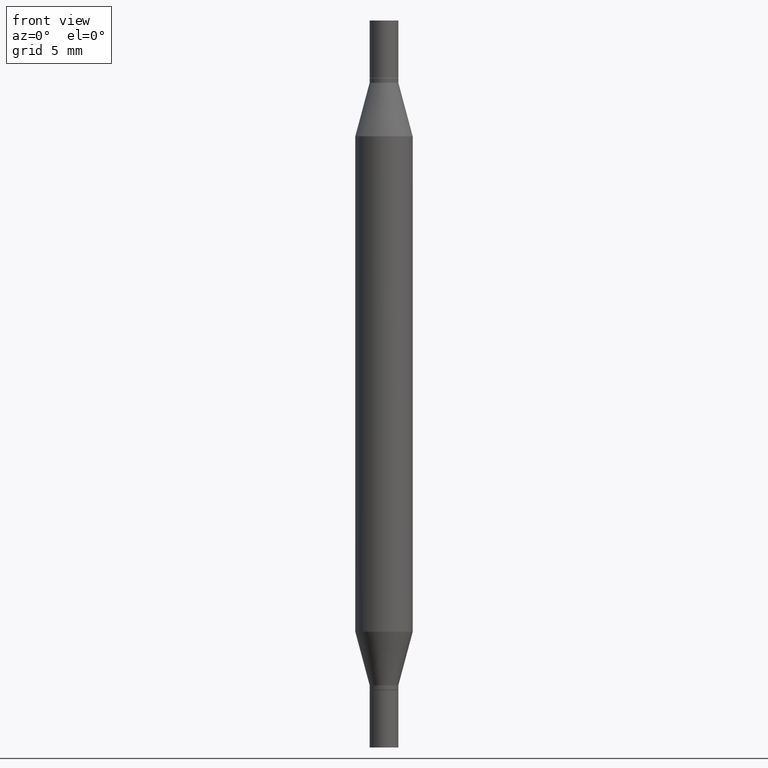
[diagram: clean part render]
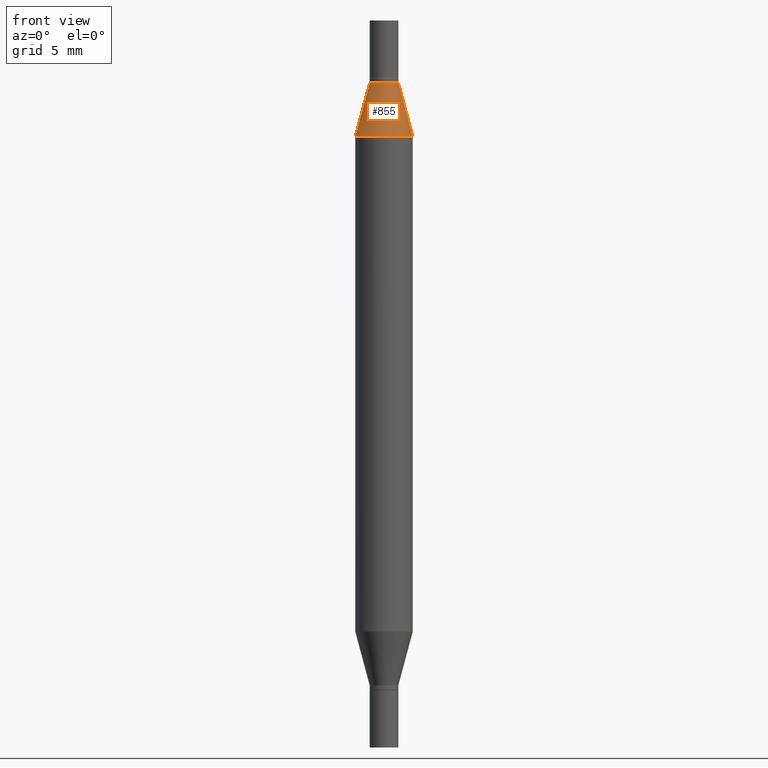
[diagram: same view with one face highlighted and labeled with its STEP entity id]
A machine part, front view. The second image highlights one B-rep face of the part: STEP entity #855.
In plain terms, the highlighted conical surface has half-angle 15 deg.
Its self-contained STEP definition (entity closure, byte-faithful):
#31 = CARTESIAN_POINT ( 'NONE',  ( 0.05904999999999999832, -1.243484836231766624E-15, -0.2380954988232820146 ) ) ;
#44 = DIRECTION ( 'NONE',  ( -0.2588190451025213501, -1.597197180879714326E-15, -0.9659258262890682012 ) ) ;
#75 = VERTEX_POINT ( 'NONE', #653 ) ;
#76 = CARTESIAN_POINT ( 'NONE',  ( 3.076410765668156654E-29, -8.311408901143919011E-16, -0.2380954988232820146 ) ) ;
#97 = DIRECTION ( 'NONE',  ( 0.2588190451025213501, -5.180148453816008779E-15, -0.9659258262890682012 ) ) ;
#110 = ORIENTED_EDGE ( 'NONE', *, *, #585, .T. ) ;
#165 = LINE ( 'NONE', #710, #436 ) ;
#166 = ORIENTED_EDGE ( 'NONE', *, *, #925, .T. ) ;
#172 = CARTESIAN_POINT ( 'NONE',  ( -0.02954999999999991661, -2.275696666105042854E-16, -0.1280000000000001137 ) ) ;
#285 = DIRECTION ( 'NONE',  ( 2.445468806185136597E-29, 3.491805094961124077E-15, 1.000000000000000000 ) ) ;
#310 = VERTEX_POINT ( 'NONE', #172 ) ;
#335 = CARTESIAN_POINT ( 'NONE',  ( -0.02954999999999991661, -2.439811505568221169E-16, -0.1280000000000001137 ) ) ;
#365 = EDGE_CURVE ( 'NONE', #75, #772, #165, .T. ) ;
#372 = CONICAL_SURFACE ( 'NONE', #438, 0.02954999999999991661, 0.2617993877991500740 ) ;
#399 = FACE_OUTER_BOUND ( 'NONE', #868, .T. ) ;
#404 = DIRECTION ( 'NONE',  ( 1.000000000000000000, -6.982962677686265133E-15, 0.000000000000000000 ) ) ;
#406 = CARTESIAN_POINT ( 'NONE',  ( 3.345645873741884627E-29, -4.467088663909703532E-16, -0.1280000000000001137 ) ) ;
#436 = VECTOR ( 'NONE', #97, 39.37007874015747433 ) ;
#438 = AXIS2_PLACEMENT_3D ( 'NONE', #406, #463, #558 ) ;
#463 = DIRECTION ( 'NONE',  ( -2.445468806185136597E-29, -3.491805094961124077E-15, -1.000000000000000000 ) ) ;
#478 = EDGE_CURVE ( 'NONE', #310, #75, #635, .T. ) ;
#518 = ORIENTED_EDGE ( 'NONE', *, *, #365, .F. ) ;
#535 = AXIS2_PLACEMENT_3D ( 'NONE', #76, #285, #756 ) ;
#555 = ORIENTED_EDGE ( 'NONE', *, *, #478, .F. ) ;
#558 = DIRECTION ( 'NONE',  ( 1.000000000000000000, -6.982962677686265133E-15, 0.000000000000000000 ) ) ;
#585 = EDGE_CURVE ( 'NONE', #932, #772, #917, .T. ) ;
#590 = VECTOR ( 'NONE', #44, 39.37007874015747433 ) ;
#635 = CIRCLE ( 'NONE', #899, 0.02954999999999991661 ) ;
#647 = CARTESIAN_POINT ( 'NONE',  ( -0.05904999999999999832, -4.260284833459836245E-16, -0.2380954988232820146 ) ) ;
#653 = CARTESIAN_POINT ( 'NONE',  ( 0.02954999999999991661, -6.530554135165988789E-16, -0.1280000000000001137 ) ) ;
#710 = CARTESIAN_POINT ( 'NONE',  ( 0.02954999999999991661, -6.530554135165988789E-16, -0.1280000000000001137 ) ) ;
#756 = DIRECTION ( 'NONE',  ( 1.000000000000000000, -6.982962677686265133E-15, 0.000000000000000000 ) ) ;
#772 = VERTEX_POINT ( 'NONE', #31 ) ;
#855 = ADVANCED_FACE ( 'NONE', ( #399 ), #372, .T. ) ;
#865 = LINE ( 'NONE', #335, #590 ) ;
#868 = EDGE_LOOP ( 'NONE', ( #555, #166, #110, #518 ) ) ;
#899 = AXIS2_PLACEMENT_3D ( 'NONE', #959, #949, #404 ) ;
#917 = CIRCLE ( 'NONE', #535, 0.05904999999999999832 ) ;
#925 = EDGE_CURVE ( 'NONE', #310, #932, #865, .T. ) ;
#932 = VERTEX_POINT ( 'NONE', #647 ) ;
#949 = DIRECTION ( 'NONE',  ( 2.445468806185136597E-29, 3.491805094961124077E-15, 1.000000000000000000 ) ) ;
#959 = CARTESIAN_POINT ( 'NONE',  ( 3.345645873741884627E-29, -4.467088663909703532E-16, -0.1280000000000001137 ) ) ;